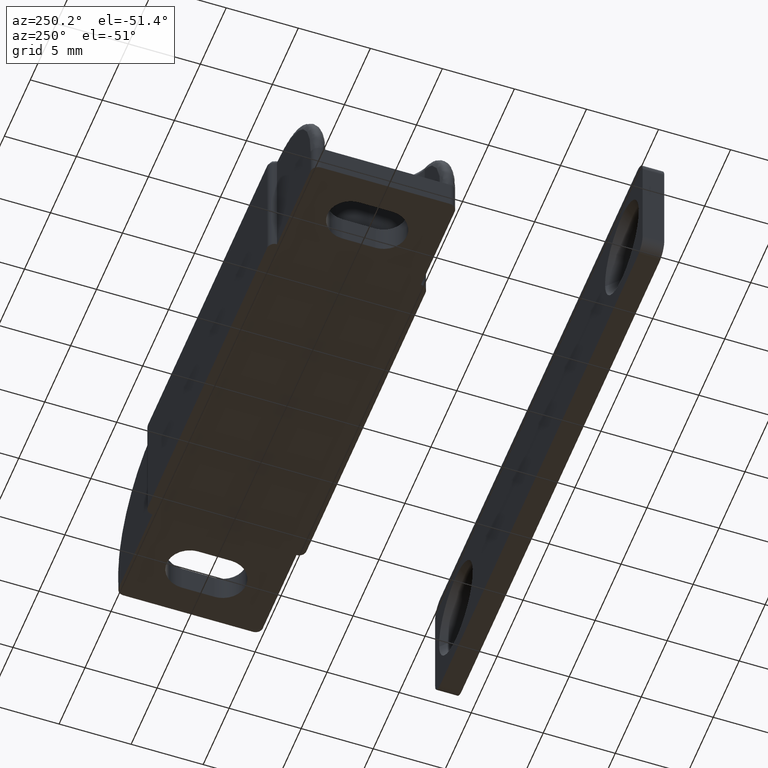
[diagram: clean part render]
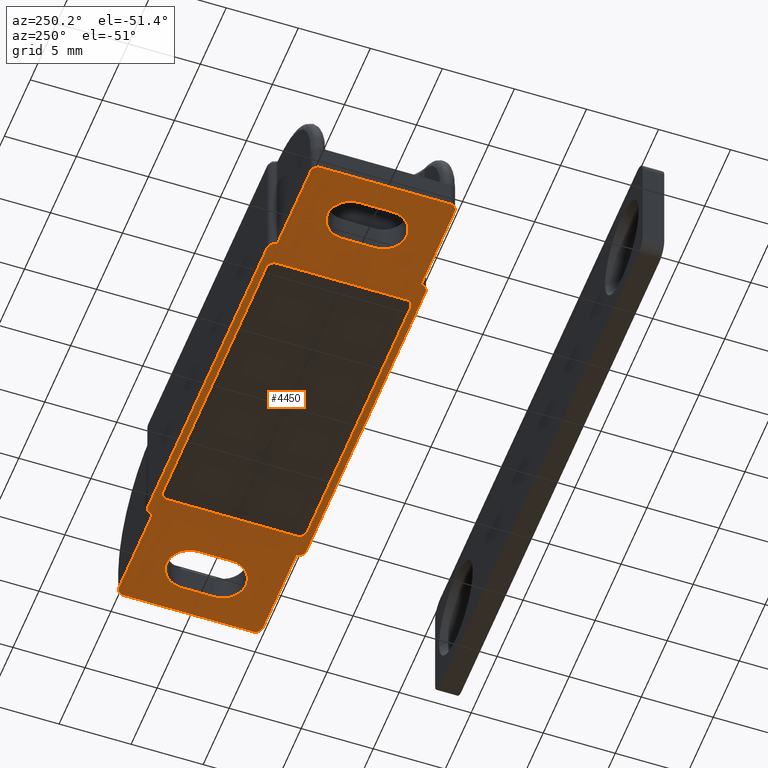
[diagram: same view with one face highlighted and labeled with its STEP entity id]
A machine part, auxiliary view. The second image highlights one B-rep face of the part: STEP entity #4450.
In plain terms, the highlighted face is a freeform B-spline surface patch.
Its self-contained STEP definition (entity closure, byte-faithful):
#1766=CARTESIAN_POINT('',(17.099999999996900,-1.150000000007640,0.0));
#1767=VERTEX_POINT('',#1766);
#1768=CARTESIAN_POINT('',(17.099999999997500,1.149999999991436,0.0));
#1769=VERTEX_POINT('',#1768);
#1770=CARTESIAN_POINT('',(17.099999999996900,-1.150000000007640,0.0));
#1771=CARTESIAN_POINT('',(17.099999999997500,1.149999999991436,0.0));
#1772=QUASI_UNIFORM_CURVE('',1,(#1770,#1771),.UNSPECIFIED.,.F.,.U.);
#1773=EDGE_CURVE('',#1767,#1769,#1772,.T.);
#1815=CARTESIAN_POINT('',(13.899999999996901,-1.150000000006514,0.0));
#1816=VERTEX_POINT('',#1815);
#1817=CARTESIAN_POINT('',(13.899999999996901,-1.150000000006514,0.0));
#1818=CARTESIAN_POINT('',(13.899999999996950,-2.750000000006548,0.0));
#1819=CARTESIAN_POINT('',(15.499999999996589,-2.750000000006912,0.0));
#1820=CARTESIAN_POINT('',(17.099999999996228,-2.750000000007276,0.0));
#1821=CARTESIAN_POINT('',(17.099999999996900,-1.150000000007640,0.0));
#1829=(BOUNDED_CURVE()B_SPLINE_CURVE(2,(#1817,#1818,#1819,#1820,#1821),.UNSPECIFIED.,.F.,.U.)B_SPLINE_CURVE_WITH_KNOTS((3,2,3),(0.0,0.500000000000000,1.0),.UNSPECIFIED.)CURVE()GEOMETRIC_REPRESENTATION_ITEM()RATIONAL_B_SPLINE_CURVE((1.0,0.707106781186628,1.0,0.707106781186628,1.0))REPRESENTATION_ITEM(''));
#1830=EDGE_CURVE('',#1816,#1767,#1829,.T.);
#1863=CARTESIAN_POINT('',(13.899999999997480,1.149999999992190,0.0));
#1864=VERTEX_POINT('',#1863);
#1865=CARTESIAN_POINT('',(13.899999999997480,1.149999999992190,0.0));
#1866=CARTESIAN_POINT('',(13.899999999996901,-1.150000000006514,0.0));
#1867=QUASI_UNIFORM_CURVE('',1,(#1865,#1866),.UNSPECIFIED.,.F.,.U.);
#1868=EDGE_CURVE('',#1864,#1816,#1867,.T.);
#1904=CARTESIAN_POINT('',(17.099999999997500,1.149999999991436,0.0));
#1905=CARTESIAN_POINT('',(17.099999999998261,2.073760430694915,0.0));
#1906=CARTESIAN_POINT('',(16.299999999998260,2.535640646046775,0.0));
#1907=CARTESIAN_POINT('',(15.499999999998252,2.997520861398634,0.0));
#1908=CARTESIAN_POINT('',(14.699999999998150,2.535640646046953,0.0));
#1909=CARTESIAN_POINT('',(13.899999999998048,2.073760430695273,0.0));
#1910=CARTESIAN_POINT('',(13.899999999997480,1.149999999992190,0.0));
#1918=(BOUNDED_CURVE()B_SPLINE_CURVE(2,(#1904,#1905,#1906,#1907,#1908,#1909,#1910),.UNSPECIFIED.,.F.,.U.)B_SPLINE_CURVE_WITH_KNOTS((3,2,2,3),(0.0,0.333333333333333,0.666666666666667,1.0),.UNSPECIFIED.)CURVE()GEOMETRIC_REPRESENTATION_ITEM()RATIONAL_B_SPLINE_CURVE((1.0,0.866025403784420,1.0,0.866025403784420,1.0,0.866025403784420,1.0))REPRESENTATION_ITEM(''));
#1919=EDGE_CURVE('',#1769,#1864,#1918,.T.);
#1961=CARTESIAN_POINT('',(-17.100000000000001,-1.150000000007640,0.0));
#1962=VERTEX_POINT('',#1961);
#1963=CARTESIAN_POINT('',(-13.900000000000000,-1.150000000006912,0.0));
#1964=VERTEX_POINT('',#1963);
#1965=CARTESIAN_POINT('',(-17.100000000000001,-1.150000000007640,0.0));
#1966=CARTESIAN_POINT('',(-17.099999999999994,-2.750000000006912,0.0));
#1967=CARTESIAN_POINT('',(-15.500000000000000,-2.750000000006912,0.0));
#1968=CARTESIAN_POINT('',(-13.899999999999999,-2.750000000006912,0.0));
#1969=CARTESIAN_POINT('',(-13.900000000000000,-1.150000000006912,0.0));
#1977=(BOUNDED_CURVE()B_SPLINE_CURVE(2,(#1965,#1966,#1967,#1968,#1969),.UNSPECIFIED.,.F.,.U.)B_SPLINE_CURVE_WITH_KNOTS((3,2,3),(0.0,0.500000000000000,1.0),.UNSPECIFIED.)CURVE()GEOMETRIC_REPRESENTATION_ITEM()RATIONAL_B_SPLINE_CURVE((1.0,0.707106781186548,1.0,0.707106781186548,1.0))REPRESENTATION_ITEM(''));
#1978=EDGE_CURVE('',#1962,#1964,#1977,.T.);
#2019=CARTESIAN_POINT('',(-13.900000000001020,1.149999999992520,0.0));
#2020=VERTEX_POINT('',#2019);
#2021=CARTESIAN_POINT('',(-13.900000000001020,1.149999999992520,0.0));
#2022=CARTESIAN_POINT('',(-13.900000000000000,-1.150000000006912,0.0));
#2023=QUASI_UNIFORM_CURVE('',1,(#2021,#2022),.UNSPECIFIED.,.F.,.U.);
#2024=EDGE_CURVE('',#2020,#1964,#2023,.T.);
#2060=CARTESIAN_POINT('',(-17.100000000001000,1.149999999991066,0.0));
#2061=VERTEX_POINT('',#2060);
#2062=CARTESIAN_POINT('',(-13.900000000001000,1.149999999992520,0.0));
#2063=CARTESIAN_POINT('',(-13.900000000001727,2.749999999992156,0.0));
#2064=CARTESIAN_POINT('',(-15.500000000001361,2.749999999991792,0.0));
#2065=CARTESIAN_POINT('',(-17.100000000001007,2.749999999991429,0.0));
#2066=CARTESIAN_POINT('',(-17.100000000001000,1.149999999991066,0.0));
#2074=(BOUNDED_CURVE()B_SPLINE_CURVE(2,(#2062,#2063,#2064,#2065,#2066),.UNSPECIFIED.,.F.,.U.)B_SPLINE_CURVE_WITH_KNOTS((3,2,3),(0.0,0.500000000000000,1.0),.UNSPECIFIED.)CURVE()GEOMETRIC_REPRESENTATION_ITEM()RATIONAL_B_SPLINE_CURVE((1.0,0.707106781186628,1.0,0.707106781186628,1.0))REPRESENTATION_ITEM(''));
#2075=EDGE_CURVE('',#2020,#2061,#2074,.T.);
#2108=CARTESIAN_POINT('',(-17.100000000000001,-1.150000000007640,0.0));
#2109=CARTESIAN_POINT('',(-17.100000000001000,1.149999999991066,0.0));
#2110=QUASI_UNIFORM_CURVE('',1,(#2108,#2109),.UNSPECIFIED.,.F.,.U.);
#2111=EDGE_CURVE('',#1962,#2061,#2110,.T.);
#2608=CARTESIAN_POINT('',(10.000000000000901,-5.0,0.0));
#2609=VERTEX_POINT('',#2608);
#2610=CARTESIAN_POINT('',(-9.999999999999089,-5.0,0.0));
#2611=VERTEX_POINT('',#2610);
#2612=CARTESIAN_POINT('',(10.000000000000901,-5.0,0.0));
#2613=CARTESIAN_POINT('',(-9.999999999999089,-5.0,0.0));
#2614=QUASI_UNIFORM_CURVE('',1,(#2612,#2613),.UNSPECIFIED.,.F.,.U.);
#2615=EDGE_CURVE('',#2609,#2611,#2614,.T.);
#2645=CARTESIAN_POINT('',(10.500000000000901,-4.499999999999894,0.0));
#2646=VERTEX_POINT('',#2645);
#2647=CARTESIAN_POINT('',(10.500000000000901,-4.499999999999894,0.0));
#2648=CARTESIAN_POINT('',(10.500000000000901,-4.999999999999998,0.0));
#2649=CARTESIAN_POINT('',(10.000000000000901,-4.999999999999999,0.0));
#2657=(BOUNDED_CURVE()B_SPLINE_CURVE(2,(#2647,#2648,#2649),.UNSPECIFIED.,.F.,.U.)CURVE()GEOMETRIC_REPRESENTATION_ITEM()QUASI_UNIFORM_CURVE()RATIONAL_B_SPLINE_CURVE((1.0,0.707106781186548,1.0))REPRESENTATION_ITEM(''));
#2658=EDGE_CURVE('',#2646,#2609,#2657,.T.);
#2675=CARTESIAN_POINT('',(10.499999999998639,4.500000000000000,0.0));
#2676=VERTEX_POINT('',#2675);
#2677=CARTESIAN_POINT('',(10.499999999998639,4.500000000000000,0.0));
#2678=CARTESIAN_POINT('',(10.500000000000901,-4.499999999999894,0.0));
#2679=QUASI_UNIFORM_CURVE('',1,(#2677,#2678),.UNSPECIFIED.,.F.,.U.);
#2680=EDGE_CURVE('',#2676,#2646,#2679,.T.);
#2706=CARTESIAN_POINT('',(9.999999999998749,5.0,0.0));
#2707=VERTEX_POINT('',#2706);
#2708=CARTESIAN_POINT('',(9.999999999998749,4.999999999999999,0.0));
#2709=CARTESIAN_POINT('',(10.499999999998632,4.999999999999878,0.0));
#2710=CARTESIAN_POINT('',(10.499999999998630,4.500000000000000,0.0));
#2718=(BOUNDED_CURVE()B_SPLINE_CURVE(2,(#2708,#2709,#2710),.UNSPECIFIED.,.F.,.U.)CURVE()GEOMETRIC_REPRESENTATION_ITEM()QUASI_UNIFORM_CURVE()RATIONAL_B_SPLINE_CURVE((1.0,0.707106781186632,1.0))REPRESENTATION_ITEM(''));
#2719=EDGE_CURVE('',#2707,#2676,#2718,.T.);
#2736=CARTESIAN_POINT('',(-10.000000000001361,5.0,0.0));
#2737=VERTEX_POINT('',#2736);
#2738=CARTESIAN_POINT('',(-10.000000000001361,5.0,0.0));
#2739=CARTESIAN_POINT('',(9.999999999998749,5.0,0.0));
#2740=QUASI_UNIFORM_CURVE('',1,(#2738,#2739),.UNSPECIFIED.,.F.,.U.);
#2741=EDGE_CURVE('',#2737,#2707,#2740,.T.);
#2767=CARTESIAN_POINT('',(-10.500000000001240,4.499999999999830,0.0));
#2768=VERTEX_POINT('',#2767);
#2769=CARTESIAN_POINT('',(-10.500000000001240,4.499999999999830,0.0));
#2770=CARTESIAN_POINT('',(-10.500000000001430,4.707106781186427,0.0));
#2771=CARTESIAN_POINT('',(-10.353553390594691,4.853553390593214,0.0));
#2772=CARTESIAN_POINT('',(-10.207106781187957,5.0,0.0));
#2773=CARTESIAN_POINT('',(-10.000000000001361,4.999999999999999,0.0));
#2781=(BOUNDED_CURVE()B_SPLINE_CURVE(2,(#2769,#2770,#2771,#2772,#2773),.UNSPECIFIED.,.F.,.U.)B_SPLINE_CURVE_WITH_KNOTS((3,2,3),(0.0,0.500000000000000,1.0),.UNSPECIFIED.)CURVE()GEOMETRIC_REPRESENTATION_ITEM()RATIONAL_B_SPLINE_CURVE((1.0,0.923879532511254,1.0,0.923879532511254,1.0))REPRESENTATION_ITEM(''));
#2782=EDGE_CURVE('',#2768,#2737,#2781,.T.);
#2799=CARTESIAN_POINT('',(-10.499999999999099,-4.500000000000220,0.0));
#2800=VERTEX_POINT('',#2799);
#2801=CARTESIAN_POINT('',(-10.499999999999099,-4.500000000000220,0.0));
#2802=CARTESIAN_POINT('',(-10.500000000001240,4.499999999999830,0.0));
#2803=QUASI_UNIFORM_CURVE('',1,(#2801,#2802),.UNSPECIFIED.,.F.,.U.);
#2804=EDGE_CURVE('',#2800,#2768,#2803,.T.);
#2830=CARTESIAN_POINT('',(-9.999999999999089,-4.999999999999999,0.0));
#2831=CARTESIAN_POINT('',(-10.499999999998870,-4.999999999999999,0.0));
#2832=CARTESIAN_POINT('',(-10.499999999999091,-4.500000000000220,0.0));
#2840=(BOUNDED_CURVE()B_SPLINE_CURVE(2,(#2830,#2831,#2832),.UNSPECIFIED.,.F.,.U.)CURVE()GEOMETRIC_REPRESENTATION_ITEM()QUASI_UNIFORM_CURVE()RATIONAL_B_SPLINE_CURVE((1.0,0.707106781186703,1.0))REPRESENTATION_ITEM(''));
#2841=EDGE_CURVE('',#2611,#2800,#2840,.T.);
#3013=CARTESIAN_POINT('',(-11.500000000000000,-5.500000000000000,0.0));
#3014=VERTEX_POINT('',#3013);
#3015=CARTESIAN_POINT('',(-12.0,-5.0,0.0));
#3016=VERTEX_POINT('',#3015);
#3017=CARTESIAN_POINT('',(-11.500000000000000,-5.500000000000000,0.0));
#3018=CARTESIAN_POINT('',(-12.0,-5.500000000000001,0.0));
#3019=CARTESIAN_POINT('',(-12.0,-5.0,0.0));
#3027=(BOUNDED_CURVE()B_SPLINE_CURVE(2,(#3017,#3018,#3019),.UNSPECIFIED.,.F.,.U.)CURVE()GEOMETRIC_REPRESENTATION_ITEM()QUASI_UNIFORM_CURVE()RATIONAL_B_SPLINE_CURVE((1.0,0.707106781186548,1.0))REPRESENTATION_ITEM(''));
#3028=EDGE_CURVE('',#3014,#3016,#3027,.T.);
#3230=CARTESIAN_POINT('',(-18.500000000000000,-5.0,0.0));
#3231=VERTEX_POINT('',#3230);
#3232=CARTESIAN_POINT('',(-19.0,-4.499999999999949,0.0));
#3233=VERTEX_POINT('',#3232);
#3234=CARTESIAN_POINT('',(-18.500000000000000,-4.999999999999949,0.0));
#3235=CARTESIAN_POINT('',(-18.999999999999993,-4.999999999999948,0.0));
#3236=CARTESIAN_POINT('',(-19.0,-4.499999999999949,0.0));
#3244=(BOUNDED_CURVE()B_SPLINE_CURVE(2,(#3234,#3235,#3236),.UNSPECIFIED.,.F.,.U.)CURVE()GEOMETRIC_REPRESENTATION_ITEM()QUASI_UNIFORM_CURVE()RATIONAL_B_SPLINE_CURVE((1.0,0.707106781186548,1.0))REPRESENTATION_ITEM(''));
#3245=EDGE_CURVE('',#3231,#3233,#3244,.T.);
#3275=CARTESIAN_POINT('',(11.999999999999799,-5.0,0.0));
#3276=VERTEX_POINT('',#3275);
#3277=CARTESIAN_POINT('',(11.499999999999799,-5.500000000000000,0.0));
#3278=VERTEX_POINT('',#3277);
#3279=CARTESIAN_POINT('',(11.999999999999799,-5.0,0.0));
#3280=CARTESIAN_POINT('',(11.999999999999799,-5.500000000000001,0.0));
#3281=CARTESIAN_POINT('',(11.499999999999799,-5.500000000000000,0.0));
#3289=(BOUNDED_CURVE()B_SPLINE_CURVE(2,(#3279,#3280,#3281),.UNSPECIFIED.,.F.,.U.)CURVE()GEOMETRIC_REPRESENTATION_ITEM()QUASI_UNIFORM_CURVE()RATIONAL_B_SPLINE_CURVE((1.0,0.707106781186548,1.0))REPRESENTATION_ITEM(''));
#3290=EDGE_CURVE('',#3276,#3278,#3289,.T.);
#3481=CARTESIAN_POINT('',(19.0,-4.499999999999949,0.0));
#3482=VERTEX_POINT('',#3481);
#3483=CARTESIAN_POINT('',(18.500000000000000,-5.0,0.0));
#3484=VERTEX_POINT('',#3483);
#3485=CARTESIAN_POINT('',(19.0,-4.499999999999949,0.0));
#3486=CARTESIAN_POINT('',(18.999999999999993,-4.999999999999948,0.0));
#3487=CARTESIAN_POINT('',(18.500000000000000,-5.0,0.0));
#3495=(BOUNDED_CURVE()B_SPLINE_CURVE(2,(#3485,#3486,#3487),.UNSPECIFIED.,.F.,.U.)CURVE()GEOMETRIC_REPRESENTATION_ITEM()QUASI_UNIFORM_CURVE()RATIONAL_B_SPLINE_CURVE((1.0,0.707106781186548,1.0))REPRESENTATION_ITEM(''));
#3496=EDGE_CURVE('',#3482,#3484,#3495,.T.);
#3759=CARTESIAN_POINT('',(11.499999999999799,5.500000000000000,0.0));
#3760=VERTEX_POINT('',#3759);
#3761=CARTESIAN_POINT('',(11.999999999999799,5.0,0.0));
#3762=VERTEX_POINT('',#3761);
#3763=CARTESIAN_POINT('',(11.499999999999799,5.500000000000000,0.0));
#3764=CARTESIAN_POINT('',(11.999999999999799,5.500000000000001,0.0));
#3765=CARTESIAN_POINT('',(11.999999999999799,5.0,0.0));
#3773=(BOUNDED_CURVE()B_SPLINE_CURVE(2,(#3763,#3764,#3765),.UNSPECIFIED.,.F.,.U.)CURVE()GEOMETRIC_REPRESENTATION_ITEM()QUASI_UNIFORM_CURVE()RATIONAL_B_SPLINE_CURVE((1.0,0.707106781186548,1.0))REPRESENTATION_ITEM(''));
#3774=EDGE_CURVE('',#3760,#3762,#3773,.T.);
#3849=CARTESIAN_POINT('',(18.500000000000000,5.0,0.0));
#3850=VERTEX_POINT('',#3849);
#3851=CARTESIAN_POINT('',(19.0,4.499999999999949,0.0));
#3852=VERTEX_POINT('',#3851);
#3853=CARTESIAN_POINT('',(18.500000000000000,4.999999999999999,0.0));
#3854=CARTESIAN_POINT('',(18.999999999999993,4.999999999999998,0.0));
#3855=CARTESIAN_POINT('',(19.0,4.499999999999949,0.0));
#3863=(BOUNDED_CURVE()B_SPLINE_CURVE(2,(#3853,#3854,#3855),.UNSPECIFIED.,.F.,.U.)CURVE()GEOMETRIC_REPRESENTATION_ITEM()QUASI_UNIFORM_CURVE()RATIONAL_B_SPLINE_CURVE((1.0,0.707106781186548,1.0))REPRESENTATION_ITEM(''));
#3864=EDGE_CURVE('',#3850,#3852,#3863,.T.);
#3950=CARTESIAN_POINT('',(-12.0,5.0,0.0));
#3951=VERTEX_POINT('',#3950);
#3952=CARTESIAN_POINT('',(-11.500000000000000,5.500000000000000,0.0));
#3953=VERTEX_POINT('',#3952);
#3954=CARTESIAN_POINT('',(-12.0,5.0,0.0));
#3955=CARTESIAN_POINT('',(-12.0,5.500000000000001,0.0));
#3956=CARTESIAN_POINT('',(-11.500000000000000,5.500000000000000,0.0));
#3964=(BOUNDED_CURVE()B_SPLINE_CURVE(2,(#3954,#3955,#3956),.UNSPECIFIED.,.F.,.U.)CURVE()GEOMETRIC_REPRESENTATION_ITEM()QUASI_UNIFORM_CURVE()RATIONAL_B_SPLINE_CURVE((1.0,0.707106781186548,1.0))REPRESENTATION_ITEM(''));
#3965=EDGE_CURVE('',#3951,#3953,#3964,.T.);
#4144=CARTESIAN_POINT('',(-19.0,4.499999999999949,0.0));
#4145=VERTEX_POINT('',#4144);
#4146=CARTESIAN_POINT('',(-18.500000000000000,5.0,0.0));
#4147=VERTEX_POINT('',#4146);
#4148=CARTESIAN_POINT('',(-19.0,4.499999999999949,0.0));
#4149=CARTESIAN_POINT('',(-19.000000000000025,4.707106781186511,0.0));
#4150=CARTESIAN_POINT('',(-18.853553390593291,4.853553390593255,0.0));
#4151=CARTESIAN_POINT('',(-18.707106781186560,4.999999999999999,0.0));
#4152=CARTESIAN_POINT('',(-18.500000000000000,4.999999999999999,0.0));
#4160=(BOUNDED_CURVE()B_SPLINE_CURVE(2,(#4148,#4149,#4150,#4151,#4152),.UNSPECIFIED.,.F.,.U.)B_SPLINE_CURVE_WITH_KNOTS((3,2,3),(0.0,0.500000000000000,1.0),.UNSPECIFIED.)CURVE()GEOMETRIC_REPRESENTATION_ITEM()RATIONAL_B_SPLINE_CURVE((1.0,0.923879532511277,1.0,0.923879532511277,1.0))REPRESENTATION_ITEM(''));
#4161=EDGE_CURVE('',#4145,#4147,#4160,.T.);
#4184=CARTESIAN_POINT('',(11.499999999999799,5.500000000000000,0.0));
#4185=CARTESIAN_POINT('',(-11.500000000000000,5.500000000000000,0.0));
#4186=QUASI_UNIFORM_CURVE('',1,(#4184,#4185),.UNSPECIFIED.,.F.,.U.);
#4187=EDGE_CURVE('',#3760,#3953,#4186,.T.);
#4200=CARTESIAN_POINT('',(11.499999999999799,-5.500000000000000,0.0));
#4201=CARTESIAN_POINT('',(-11.500000000000000,-5.500000000000000,0.0));
#4202=QUASI_UNIFORM_CURVE('',1,(#4200,#4201),.UNSPECIFIED.,.F.,.U.);
#4203=EDGE_CURVE('',#3278,#3014,#4202,.T.);
#4214=CARTESIAN_POINT('',(19.0,4.499999999999949,0.0));
#4215=CARTESIAN_POINT('',(19.0,-4.499999999999949,0.0));
#4216=QUASI_UNIFORM_CURVE('',1,(#4214,#4215),.UNSPECIFIED.,.F.,.U.);
#4217=EDGE_CURVE('',#3852,#3482,#4216,.T.);
#4287=CARTESIAN_POINT('',(-19.0,4.499999999999949,0.0));
#4288=CARTESIAN_POINT('',(-19.0,-4.499999999999949,0.0));
#4289=QUASI_UNIFORM_CURVE('',1,(#4287,#4288),.UNSPECIFIED.,.F.,.U.);
#4290=EDGE_CURVE('',#4145,#3233,#4289,.T.);
#4304=CARTESIAN_POINT('',(18.500000000000000,-5.0,0.0));
#4305=CARTESIAN_POINT('',(11.999999999999799,-5.0,0.0));
#4306=QUASI_UNIFORM_CURVE('',1,(#4304,#4305),.UNSPECIFIED.,.F.,.U.);
#4307=EDGE_CURVE('',#3484,#3276,#4306,.T.);
#4319=CARTESIAN_POINT('',(-12.0,-5.0,0.0));
#4320=CARTESIAN_POINT('',(-18.500000000000000,-5.0,0.0));
#4321=QUASI_UNIFORM_CURVE('',1,(#4319,#4320),.UNSPECIFIED.,.F.,.U.);
#4322=EDGE_CURVE('',#3016,#3231,#4321,.T.);
#4335=CARTESIAN_POINT('',(18.500000000000000,5.0,0.0));
#4336=CARTESIAN_POINT('',(11.999999999999799,5.0,0.0));
#4337=QUASI_UNIFORM_CURVE('',1,(#4335,#4336),.UNSPECIFIED.,.F.,.U.);
#4338=EDGE_CURVE('',#3850,#3762,#4337,.T.);
#4349=CARTESIAN_POINT('',(-12.0,5.0,0.0));
#4350=CARTESIAN_POINT('',(-18.500000000000000,5.0,0.0));
#4351=QUASI_UNIFORM_CURVE('',1,(#4349,#4350),.UNSPECIFIED.,.F.,.U.);
#4352=EDGE_CURVE('',#3951,#4147,#4351,.T.);
#4405=CARTESIAN_POINT('',(-20.898099926348628,-6.049449978679865,0.0));
#4406=CARTESIAN_POINT('',(20.898100945588052,-6.049449978679865,0.0));
#4407=CARTESIAN_POINT('',(-20.898099926348628,6.049450273722857,0.0));
#4408=CARTESIAN_POINT('',(20.898100945588052,6.049450273722857,0.0));
#4409=B_SPLINE_SURFACE_WITH_KNOTS('',1,1,((#4405,#4407),(#4406,#4408)),.UNSPECIFIED.,.F.,.F.,.U.,(2,2),(2,2),(0.0,41.796200871936684),(0.0,12.098900252402720),.UNSPECIFIED.);
#4410=ORIENTED_EDGE('',*,*,#4187,.F.);
#4411=ORIENTED_EDGE('',*,*,#3774,.T.);
#4412=ORIENTED_EDGE('',*,*,#4338,.F.);
#4413=ORIENTED_EDGE('',*,*,#3864,.T.);
#4414=ORIENTED_EDGE('',*,*,#4217,.T.);
#4415=ORIENTED_EDGE('',*,*,#3496,.T.);
#4416=ORIENTED_EDGE('',*,*,#4307,.T.);
#4417=ORIENTED_EDGE('',*,*,#3290,.T.);
#4418=ORIENTED_EDGE('',*,*,#4203,.T.);
#4419=ORIENTED_EDGE('',*,*,#3028,.T.);
#4420=ORIENTED_EDGE('',*,*,#4322,.T.);
#4421=ORIENTED_EDGE('',*,*,#3245,.T.);
#4422=ORIENTED_EDGE('',*,*,#4290,.F.);
#4423=ORIENTED_EDGE('',*,*,#4161,.T.);
#4424=ORIENTED_EDGE('',*,*,#4352,.F.);
#4425=ORIENTED_EDGE('',*,*,#3965,.T.);
#4426=EDGE_LOOP('',(#4410,#4411,#4412,#4413,#4414,#4415,#4416,#4417,#4418,#4419,#4420,#4421,#4422,#4423,#4424,#4425));
#4427=FACE_OUTER_BOUND('',#4426,.T.);
#4428=ORIENTED_EDGE('',*,*,#2804,.F.);
#4429=ORIENTED_EDGE('',*,*,#2841,.F.);
#4430=ORIENTED_EDGE('',*,*,#2615,.F.);
#4431=ORIENTED_EDGE('',*,*,#2658,.F.);
#4432=ORIENTED_EDGE('',*,*,#2680,.F.);
#4433=ORIENTED_EDGE('',*,*,#2719,.F.);
#4434=ORIENTED_EDGE('',*,*,#2741,.F.);
#4435=ORIENTED_EDGE('',*,*,#2782,.F.);
#4436=EDGE_LOOP('',(#4428,#4429,#4430,#4431,#4432,#4433,#4434,#4435));
#4437=FACE_BOUND('',#4436,.T.);
#4438=ORIENTED_EDGE('',*,*,#2075,.T.);
#4439=ORIENTED_EDGE('',*,*,#2111,.F.);
#4440=ORIENTED_EDGE('',*,*,#1978,.T.);
#4441=ORIENTED_EDGE('',*,*,#2024,.F.);
#4442=EDGE_LOOP('',(#4438,#4439,#4440,#4441));
#4443=FACE_BOUND('',#4442,.T.);
#4444=ORIENTED_EDGE('',*,*,#1919,.T.);
#4445=ORIENTED_EDGE('',*,*,#1868,.T.);
#4446=ORIENTED_EDGE('',*,*,#1830,.T.);
#4447=ORIENTED_EDGE('',*,*,#1773,.T.);
#4448=EDGE_LOOP('',(#4444,#4445,#4446,#4447));
#4449=FACE_BOUND('',#4448,.T.);
#4450=ADVANCED_FACE('',(#4427,#4437,#4443,#4449),#4409,.F.);